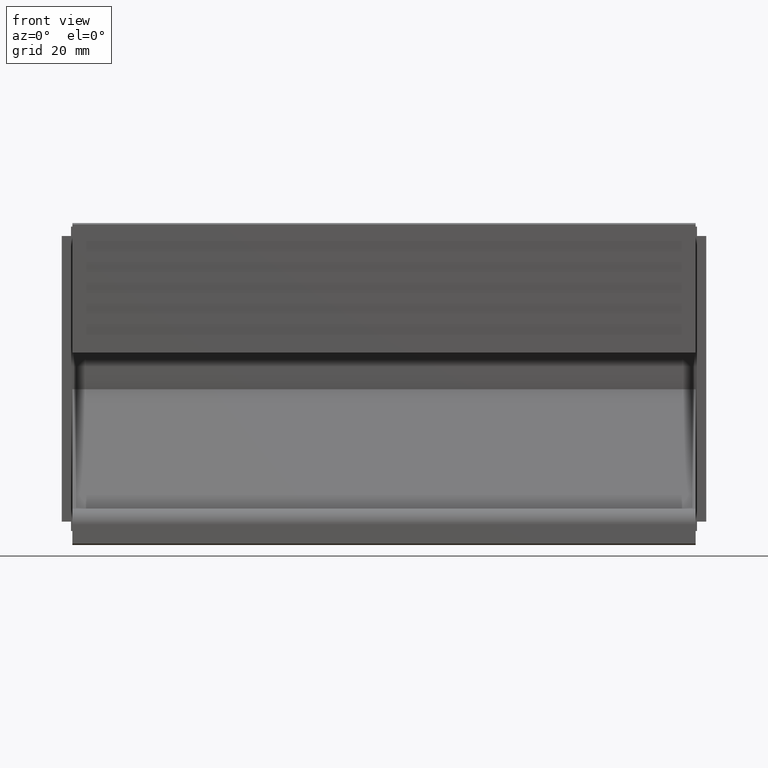
[diagram: clean part render]
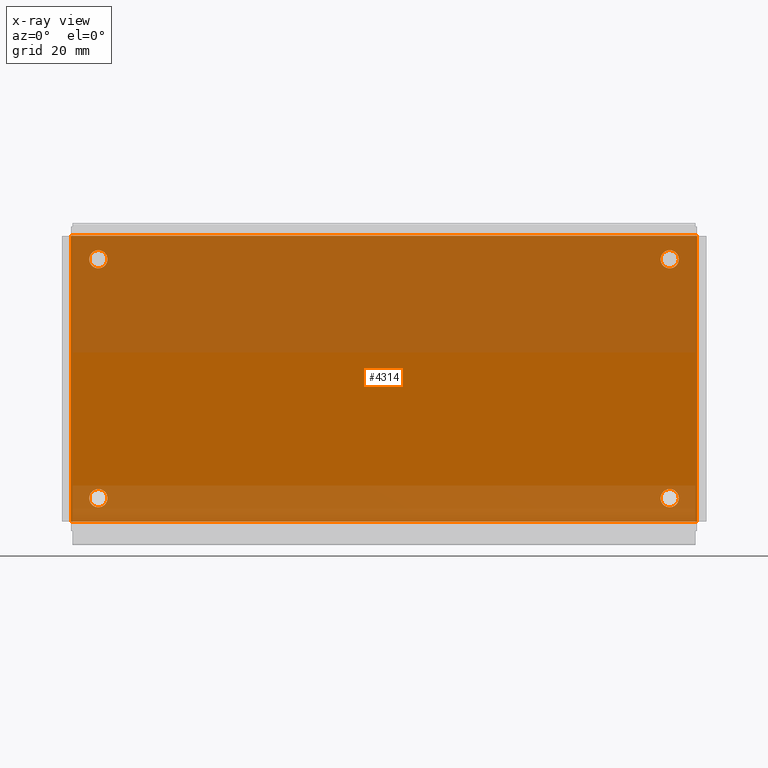
[diagram: x-ray — body ghosted, one internal face saturated and labeled with its STEP entity id]
A machine part, front view, then the same camera in x-ray: the body is ghosted and one INTERNAL B-rep face — a face not visible from any outside direction — is saturated and labeled: STEP entity #4314.
In plain terms, the highlighted face is a freeform B-spline surface patch.
Its self-contained STEP definition (entity closure, byte-faithful):
#2851=CARTESIAN_POINT('',(-53.255394666056162,-1.600000000000045,22.862696581343780));
#2852=VERTEX_POINT('',#2851);
#2858=CARTESIAN_POINT('',(-55.0,-1.600000000000045,24.750000000000000));
#2859=VERTEX_POINT('',#2858);
#2860=CARTESIAN_POINT('',(-53.255394666056155,-1.600000000000045,22.862696581343780));
#2861=CARTESIAN_POINT('',(-53.250000000000000,-1.600000000000045,22.931242311598830));
#2862=CARTESIAN_POINT('',(-53.250000000000000,-1.600000000000045,23.0));
#2863=CARTESIAN_POINT('',(-53.249999999999993,-1.600000000000045,24.750000000000000));
#2864=CARTESIAN_POINT('',(-55.0,-1.600000000000045,24.750000000000000));
#2872=(BOUNDED_CURVE()B_SPLINE_CURVE(2,(#2860,#2861,#2862,#2863,#2864),.UNSPECIFIED.,.F.,.U.)B_SPLINE_CURVE_WITH_KNOTS((3,2,3),(0.736331300410209,0.750000000000000,1.0),.UNSPECIFIED.)CURVE()GEOMETRIC_REPRESENTATION_ITEM()RATIONAL_B_SPLINE_CURVE((0.969723355707354,0.983986122320608,1.0,0.707106781186547,1.0))REPRESENTATION_ITEM(''));
#2873=EDGE_CURVE('',#2852,#2859,#2872,.T.);
#2875=CARTESIAN_POINT('',(-56.744605333943852,-1.600000000000045,23.137303418656220));
#2876=VERTEX_POINT('',#2875);
#2877=CARTESIAN_POINT('',(-55.0,-1.600000000000045,24.750000000000000));
#2878=CARTESIAN_POINT('',(-56.617683358295153,-1.600000000000046,24.750000000000004));
#2879=CARTESIAN_POINT('',(-56.744605333943845,-1.600000000000045,23.137303418656227));
#2887=(BOUNDED_CURVE()B_SPLINE_CURVE(2,(#2877,#2878,#2879),.UNSPECIFIED.,.F.,.U.)B_SPLINE_CURVE_WITH_KNOTS((3,3),(0.0,0.236331300410209),.UNSPECIFIED.)CURVE()GEOMETRIC_REPRESENTATION_ITEM()RATIONAL_B_SPLINE_CURVE((1.0,0.723120658865939,0.969723355707354))REPRESENTATION_ITEM(''));
#2888=EDGE_CURVE('',#2859,#2876,#2887,.T.);
#2934=CARTESIAN_POINT('',(-55.0,-1.600000000000045,21.250000000000000));
#2935=VERTEX_POINT('',#2934);
#2936=CARTESIAN_POINT('',(-56.744605333943838,-1.600000000000045,23.137303418656224));
#2937=CARTESIAN_POINT('',(-56.750000000000007,-1.600000000000046,23.068757688401178));
#2938=CARTESIAN_POINT('',(-56.750000000000000,-1.600000000000045,23.0));
#2939=CARTESIAN_POINT('',(-56.750000000000000,-1.600000000000045,21.249999999999996));
#2940=CARTESIAN_POINT('',(-55.0,-1.600000000000045,21.250000000000000));
#2948=(BOUNDED_CURVE()B_SPLINE_CURVE(2,(#2936,#2937,#2938,#2939,#2940),.UNSPECIFIED.,.F.,.U.)B_SPLINE_CURVE_WITH_KNOTS((3,2,3),(0.236331300410209,0.250000000000000,0.500000000000000),.UNSPECIFIED.)CURVE()GEOMETRIC_REPRESENTATION_ITEM()RATIONAL_B_SPLINE_CURVE((0.969723355707355,0.983986122320608,1.0,0.707106781186547,1.0))REPRESENTATION_ITEM(''));
#2949=EDGE_CURVE('',#2876,#2935,#2948,.T.);
#2951=CARTESIAN_POINT('',(-55.0,-1.600000000000045,21.250000000000000));
#2952=CARTESIAN_POINT('',(-53.382316641704861,-1.600000000000046,21.249999999999993));
#2953=CARTESIAN_POINT('',(-53.255394666056155,-1.600000000000045,22.862696581343776));
#2961=(BOUNDED_CURVE()B_SPLINE_CURVE(2,(#2951,#2952,#2953),.UNSPECIFIED.,.F.,.U.)B_SPLINE_CURVE_WITH_KNOTS((3,3),(0.500000000000000,0.736331300410209),.UNSPECIFIED.)CURVE()GEOMETRIC_REPRESENTATION_ITEM()RATIONAL_B_SPLINE_CURVE((1.0,0.723120658865940,0.969723355707353))REPRESENTATION_ITEM(''));
#2962=EDGE_CURVE('',#2935,#2852,#2961,.T.);
#3033=CARTESIAN_POINT('',(56.744605333943852,-1.600000000000045,22.862696581343780));
#3034=VERTEX_POINT('',#3033);
#3040=CARTESIAN_POINT('',(55.0,-1.600000000000045,24.750000000000000));
#3041=VERTEX_POINT('',#3040);
#3042=CARTESIAN_POINT('',(56.744605333943845,-1.600000000000045,22.862696581343780));
#3043=CARTESIAN_POINT('',(56.750000000000000,-1.600000000000045,22.931242311598830));
#3044=CARTESIAN_POINT('',(56.750000000000000,-1.600000000000045,23.0));
#3045=CARTESIAN_POINT('',(56.750000000000000,-1.600000000000045,24.750000000000000));
#3046=CARTESIAN_POINT('',(55.0,-1.600000000000045,24.750000000000000));
#3054=(BOUNDED_CURVE()B_SPLINE_CURVE(2,(#3042,#3043,#3044,#3045,#3046),.UNSPECIFIED.,.F.,.U.)B_SPLINE_CURVE_WITH_KNOTS((3,2,3),(0.736331300410209,0.750000000000000,1.0),.UNSPECIFIED.)CURVE()GEOMETRIC_REPRESENTATION_ITEM()RATIONAL_B_SPLINE_CURVE((0.969723355707354,0.983986122320608,1.0,0.707106781186547,1.0))REPRESENTATION_ITEM(''));
#3055=EDGE_CURVE('',#3034,#3041,#3054,.T.);
#3057=CARTESIAN_POINT('',(53.255394666056162,-1.600000000000045,23.137303418656231));
#3058=VERTEX_POINT('',#3057);
#3059=CARTESIAN_POINT('',(55.0,-1.600000000000045,24.750000000000000));
#3060=CARTESIAN_POINT('',(53.382316641704854,-1.600000000000045,24.750000000000000));
#3061=CARTESIAN_POINT('',(53.255394666056162,-1.600000000000045,23.137303418656224));
#3069=(BOUNDED_CURVE()B_SPLINE_CURVE(2,(#3059,#3060,#3061),.UNSPECIFIED.,.F.,.U.)B_SPLINE_CURVE_WITH_KNOTS((3,3),(0.0,0.236331300410209),.UNSPECIFIED.)CURVE()GEOMETRIC_REPRESENTATION_ITEM()RATIONAL_B_SPLINE_CURVE((1.0,0.723120658865939,0.969723355707354))REPRESENTATION_ITEM(''));
#3070=EDGE_CURVE('',#3041,#3058,#3069,.T.);
#3116=CARTESIAN_POINT('',(55.0,-1.600000000000045,21.250000000000000));
#3117=VERTEX_POINT('',#3116);
#3118=CARTESIAN_POINT('',(53.255394666056162,-1.600000000000045,23.137303418656224));
#3119=CARTESIAN_POINT('',(53.250000000000014,-1.600000000000045,23.068757688401174));
#3120=CARTESIAN_POINT('',(53.250000000000000,-1.600000000000045,23.0));
#3121=CARTESIAN_POINT('',(53.249999999999993,-1.600000000000045,21.249999999999996));
#3122=CARTESIAN_POINT('',(55.0,-1.600000000000045,21.250000000000000));
#3130=(BOUNDED_CURVE()B_SPLINE_CURVE(2,(#3118,#3119,#3120,#3121,#3122),.UNSPECIFIED.,.F.,.U.)B_SPLINE_CURVE_WITH_KNOTS((3,2,3),(0.236331300410209,0.250000000000000,0.500000000000000),.UNSPECIFIED.)CURVE()GEOMETRIC_REPRESENTATION_ITEM()RATIONAL_B_SPLINE_CURVE((0.969723355707354,0.983986122320608,1.0,0.707106781186547,1.0))REPRESENTATION_ITEM(''));
#3131=EDGE_CURVE('',#3058,#3117,#3130,.T.);
#3133=CARTESIAN_POINT('',(55.0,-1.600000000000045,21.250000000000000));
#3134=CARTESIAN_POINT('',(56.617683358295153,-1.600000000000046,21.249999999999993));
#3135=CARTESIAN_POINT('',(56.744605333943845,-1.600000000000045,22.862696581343776));
#3143=(BOUNDED_CURVE()B_SPLINE_CURVE(2,(#3133,#3134,#3135),.UNSPECIFIED.,.F.,.U.)B_SPLINE_CURVE_WITH_KNOTS((3,3),(0.500000000000000,0.736331300410209),.UNSPECIFIED.)CURVE()GEOMETRIC_REPRESENTATION_ITEM()RATIONAL_B_SPLINE_CURVE((1.0,0.723120658865940,0.969723355707353))REPRESENTATION_ITEM(''));
#3144=EDGE_CURVE('',#3117,#3034,#3143,.T.);
#3215=CARTESIAN_POINT('',(56.744605333943838,-1.600000000000045,-23.137303418656220));
#3216=VERTEX_POINT('',#3215);
#3222=CARTESIAN_POINT('',(55.0,-1.600000000000045,-21.250000000000000));
#3223=VERTEX_POINT('',#3222);
#3224=CARTESIAN_POINT('',(56.744605333943838,-1.600000000000045,-23.137303418656227));
#3225=CARTESIAN_POINT('',(56.750000000000007,-1.600000000000045,-23.068757688401174));
#3226=CARTESIAN_POINT('',(56.750000000000000,-1.600000000000045,-23.0));
#3227=CARTESIAN_POINT('',(56.750000000000000,-1.600000000000045,-21.249999999999996));
#3228=CARTESIAN_POINT('',(55.0,-1.600000000000045,-21.250000000000000));
#3236=(BOUNDED_CURVE()B_SPLINE_CURVE(2,(#3224,#3225,#3226,#3227,#3228),.UNSPECIFIED.,.F.,.U.)B_SPLINE_CURVE_WITH_KNOTS((3,2,3),(0.736331300410209,0.750000000000000,1.0),.UNSPECIFIED.)CURVE()GEOMETRIC_REPRESENTATION_ITEM()RATIONAL_B_SPLINE_CURVE((0.969723355707354,0.983986122320608,1.0,0.707106781186547,1.0))REPRESENTATION_ITEM(''));
#3237=EDGE_CURVE('',#3216,#3223,#3236,.T.);
#3239=CARTESIAN_POINT('',(53.255394666056162,-1.600000000000045,-22.862696581343780));
#3240=VERTEX_POINT('',#3239);
#3241=CARTESIAN_POINT('',(55.0,-1.600000000000045,-21.250000000000000));
#3242=CARTESIAN_POINT('',(53.382316641704847,-1.600000000000046,-21.250000000000000));
#3243=CARTESIAN_POINT('',(53.255394666056155,-1.600000000000045,-22.862696581343780));
#3251=(BOUNDED_CURVE()B_SPLINE_CURVE(2,(#3241,#3242,#3243),.UNSPECIFIED.,.F.,.U.)B_SPLINE_CURVE_WITH_KNOTS((3,3),(0.0,0.236331300410209),.UNSPECIFIED.)CURVE()GEOMETRIC_REPRESENTATION_ITEM()RATIONAL_B_SPLINE_CURVE((1.0,0.723120658865939,0.969723355707354))REPRESENTATION_ITEM(''));
#3252=EDGE_CURVE('',#3223,#3240,#3251,.T.);
#3298=CARTESIAN_POINT('',(55.0,-1.600000000000045,-24.750000000000000));
#3299=VERTEX_POINT('',#3298);
#3300=CARTESIAN_POINT('',(53.255394666056155,-1.600000000000045,-22.862696581343780));
#3301=CARTESIAN_POINT('',(53.250000000000000,-1.600000000000045,-22.931242311598830));
#3302=CARTESIAN_POINT('',(53.250000000000000,-1.600000000000045,-23.0));
#3303=CARTESIAN_POINT('',(53.249999999999993,-1.600000000000045,-24.750000000000000));
#3304=CARTESIAN_POINT('',(55.0,-1.600000000000045,-24.750000000000000));
#3312=(BOUNDED_CURVE()B_SPLINE_CURVE(2,(#3300,#3301,#3302,#3303,#3304),.UNSPECIFIED.,.F.,.U.)B_SPLINE_CURVE_WITH_KNOTS((3,2,3),(0.236331300410209,0.250000000000000,0.500000000000000),.UNSPECIFIED.)CURVE()GEOMETRIC_REPRESENTATION_ITEM()RATIONAL_B_SPLINE_CURVE((0.969723355707354,0.983986122320608,1.0,0.707106781186547,1.0))REPRESENTATION_ITEM(''));
#3313=EDGE_CURVE('',#3240,#3299,#3312,.T.);
#3315=CARTESIAN_POINT('',(55.0,-1.600000000000045,-24.750000000000000));
#3316=CARTESIAN_POINT('',(56.617683358295153,-1.600000000000046,-24.750000000000004));
#3317=CARTESIAN_POINT('',(56.744605333943845,-1.600000000000045,-23.137303418656224));
#3325=(BOUNDED_CURVE()B_SPLINE_CURVE(2,(#3315,#3316,#3317),.UNSPECIFIED.,.F.,.U.)B_SPLINE_CURVE_WITH_KNOTS((3,3),(0.500000000000000,0.736331300410209),.UNSPECIFIED.)CURVE()GEOMETRIC_REPRESENTATION_ITEM()RATIONAL_B_SPLINE_CURVE((1.0,0.723120658865940,0.969723355707353))REPRESENTATION_ITEM(''));
#3326=EDGE_CURVE('',#3299,#3216,#3325,.T.);
#3397=CARTESIAN_POINT('',(-53.255394666056162,-1.600000000000045,-23.137303418656220));
#3398=VERTEX_POINT('',#3397);
#3404=CARTESIAN_POINT('',(-55.0,-1.600000000000045,-21.250000000000000));
#3405=VERTEX_POINT('',#3404);
#3406=CARTESIAN_POINT('',(-53.255394666056148,-1.600000000000045,-23.137303418656220));
#3407=CARTESIAN_POINT('',(-53.249999999999993,-1.600000000000045,-23.068757688401174));
#3408=CARTESIAN_POINT('',(-53.250000000000000,-1.600000000000045,-23.0));
#3409=CARTESIAN_POINT('',(-53.249999999999993,-1.600000000000045,-21.249999999999996));
#3410=CARTESIAN_POINT('',(-55.0,-1.600000000000045,-21.250000000000000));
#3418=(BOUNDED_CURVE()B_SPLINE_CURVE(2,(#3406,#3407,#3408,#3409,#3410),.UNSPECIFIED.,.F.,.U.)B_SPLINE_CURVE_WITH_KNOTS((3,2,3),(0.736331300410209,0.750000000000000,1.0),.UNSPECIFIED.)CURVE()GEOMETRIC_REPRESENTATION_ITEM()RATIONAL_B_SPLINE_CURVE((0.969723355707355,0.983986122320609,1.0,0.707106781186547,1.0))REPRESENTATION_ITEM(''));
#3419=EDGE_CURVE('',#3398,#3405,#3418,.T.);
#3421=CARTESIAN_POINT('',(-56.744605333943838,-1.600000000000045,-22.862696581343769));
#3422=VERTEX_POINT('',#3421);
#3423=CARTESIAN_POINT('',(-55.0,-1.600000000000045,-21.250000000000000));
#3424=CARTESIAN_POINT('',(-56.617683358295153,-1.600000000000045,-21.249999999999996));
#3425=CARTESIAN_POINT('',(-56.744605333943838,-1.600000000000045,-22.862696581343776));
#3433=(BOUNDED_CURVE()B_SPLINE_CURVE(2,(#3423,#3424,#3425),.UNSPECIFIED.,.F.,.U.)B_SPLINE_CURVE_WITH_KNOTS((3,3),(0.0,0.236331300410209),.UNSPECIFIED.)CURVE()GEOMETRIC_REPRESENTATION_ITEM()RATIONAL_B_SPLINE_CURVE((1.0,0.723120658865939,0.969723355707354))REPRESENTATION_ITEM(''));
#3434=EDGE_CURVE('',#3405,#3422,#3433,.T.);
#3480=CARTESIAN_POINT('',(-55.0,-1.600000000000045,-24.750000000000000));
#3481=VERTEX_POINT('',#3480);
#3482=CARTESIAN_POINT('',(-56.744605333943845,-1.600000000000045,-22.862696581343773));
#3483=CARTESIAN_POINT('',(-56.750000000000007,-1.600000000000045,-22.931242311598830));
#3484=CARTESIAN_POINT('',(-56.750000000000000,-1.600000000000045,-23.0));
#3485=CARTESIAN_POINT('',(-56.750000000000000,-1.600000000000045,-24.750000000000000));
#3486=CARTESIAN_POINT('',(-55.0,-1.600000000000045,-24.750000000000000));
#3494=(BOUNDED_CURVE()B_SPLINE_CURVE(2,(#3482,#3483,#3484,#3485,#3486),.UNSPECIFIED.,.F.,.U.)B_SPLINE_CURVE_WITH_KNOTS((3,2,3),(0.236331300410209,0.250000000000000,0.500000000000000),.UNSPECIFIED.)CURVE()GEOMETRIC_REPRESENTATION_ITEM()RATIONAL_B_SPLINE_CURVE((0.969723355707354,0.983986122320608,1.0,0.707106781186547,1.0))REPRESENTATION_ITEM(''));
#3495=EDGE_CURVE('',#3422,#3481,#3494,.T.);
#3497=CARTESIAN_POINT('',(-55.0,-1.600000000000045,-24.750000000000000));
#3498=CARTESIAN_POINT('',(-53.382316641704861,-1.600000000000046,-24.750000000000004));
#3499=CARTESIAN_POINT('',(-53.255394666056155,-1.600000000000045,-23.137303418656224));
#3507=(BOUNDED_CURVE()B_SPLINE_CURVE(2,(#3497,#3498,#3499),.UNSPECIFIED.,.F.,.U.)B_SPLINE_CURVE_WITH_KNOTS((3,3),(0.500000000000000,0.736331300410209),.UNSPECIFIED.)CURVE()GEOMETRIC_REPRESENTATION_ITEM()RATIONAL_B_SPLINE_CURVE((1.0,0.723120658865940,0.969723355707353))REPRESENTATION_ITEM(''));
#3508=EDGE_CURVE('',#3481,#3398,#3507,.T.);
#3710=CARTESIAN_POINT('',(-60.250000000000000,-1.600000000000045,27.500000000000000));
#3711=VERTEX_POINT('',#3710);
#3733=CARTESIAN_POINT('',(-60.250000000000000,-1.600000000000045,-27.500000000000000));
#3734=VERTEX_POINT('',#3733);
#3735=CARTESIAN_POINT('',(-60.250000000000000,-1.600000000000045,27.500000000000000));
#3736=CARTESIAN_POINT('',(-60.250000000000000,-1.600000000000045,-27.500000000000000));
#3737=QUASI_UNIFORM_CURVE('',1,(#3735,#3736),.UNSPECIFIED.,.F.,.U.);
#3738=EDGE_CURVE('',#3711,#3734,#3737,.T.);
#3808=CARTESIAN_POINT('',(60.250000000000000,-1.600000000000045,-27.500000000000000));
#3809=VERTEX_POINT('',#3808);
#3841=CARTESIAN_POINT('',(60.250000000000000,-1.600000000000045,27.500000000000000));
#3842=VERTEX_POINT('',#3841);
#3875=CARTESIAN_POINT('',(60.250000000000000,-1.600000000000045,27.500000000000000));
#3876=CARTESIAN_POINT('',(60.250000000000000,-1.600000000000045,-27.500000000000000));
#3877=QUASI_UNIFORM_CURVE('',1,(#3875,#3876),.UNSPECIFIED.,.F.,.U.);
#3878=EDGE_CURVE('',#3842,#3809,#3877,.T.);
#3890=CARTESIAN_POINT('',(-60.250000000000000,-1.600000000000000,-27.510000000000002));
#3891=VERTEX_POINT('',#3890);
#3892=CARTESIAN_POINT('',(-60.250000000000000,-1.600000000000045,-27.500000000000000));
#3893=CARTESIAN_POINT('',(-60.250000000000000,-1.600000000000000,-27.510000000000002));
#3894=QUASI_UNIFORM_CURVE('',1,(#3892,#3893),.UNSPECIFIED.,.F.,.U.);
#3895=EDGE_CURVE('',#3734,#3891,#3894,.T.);
#3941=CARTESIAN_POINT('',(60.250000000000000,-1.600000000000000,-27.510000000000002));
#3942=VERTEX_POINT('',#3941);
#3943=CARTESIAN_POINT('',(60.250000000000000,-1.600000000000045,-27.500000000000000));
#3944=CARTESIAN_POINT('',(60.250000000000000,-1.600000000000000,-27.510000000000002));
#3945=QUASI_UNIFORM_CURVE('',1,(#3943,#3944),.UNSPECIFIED.,.F.,.U.);
#3946=EDGE_CURVE('',#3809,#3942,#3945,.T.);
#4111=CARTESIAN_POINT('',(60.250000000000000,-1.600000000000000,-27.510000000000002));
#4112=CARTESIAN_POINT('',(-60.250000000000000,-1.600000000000000,-27.510000000000002));
#4113=QUASI_UNIFORM_CURVE('',1,(#4111,#4112),.UNSPECIFIED.,.F.,.U.);
#4114=EDGE_CURVE('',#3942,#3891,#4113,.T.);
#4126=CARTESIAN_POINT('',(-60.250000000000000,-1.600000000000000,27.510000000000002));
#4127=VERTEX_POINT('',#4126);
#4133=CARTESIAN_POINT('',(60.250000000000000,-1.600000000000000,27.510000000000002));
#4134=VERTEX_POINT('',#4133);
#4135=CARTESIAN_POINT('',(60.250000000000000,-1.600000000000000,27.510000000000002));
#4136=CARTESIAN_POINT('',(-60.250000000000000,-1.600000000000000,27.510000000000002));
#4137=QUASI_UNIFORM_CURVE('',1,(#4135,#4136),.UNSPECIFIED.,.F.,.U.);
#4138=EDGE_CURVE('',#4134,#4127,#4137,.T.);
#4208=CARTESIAN_POINT('',(60.250000000000000,-1.600000000000000,27.510000000000002));
#4209=CARTESIAN_POINT('',(60.250000000000000,-1.600000000000045,27.500000000000000));
#4210=QUASI_UNIFORM_CURVE('',1,(#4208,#4209),.UNSPECIFIED.,.F.,.U.);
#4211=EDGE_CURVE('',#4134,#3842,#4210,.T.);
#4227=CARTESIAN_POINT('',(-60.250000000000000,-1.600000000000000,27.510000000000002));
#4228=CARTESIAN_POINT('',(-60.250000000000000,-1.600000000000045,27.500000000000000));
#4229=QUASI_UNIFORM_CURVE('',1,(#4227,#4228),.UNSPECIFIED.,.F.,.U.);
#4230=EDGE_CURVE('',#4127,#3711,#4229,.T.);
#4275=CARTESIAN_POINT('',(-66.268974766447613,-1.600000000000000,-30.258249409848968));
#4276=CARTESIAN_POINT('',(-66.268974766447613,-1.600000000000000,30.258250393683230));
#4277=CARTESIAN_POINT('',(66.268977998509484,-1.600000000000000,-30.258249409848968));
#4278=CARTESIAN_POINT('',(66.268977998509484,-1.600000000000000,30.258250393683230));
#4279=B_SPLINE_SURFACE_WITH_KNOTS('',1,1,((#4275,#4277),(#4276,#4278)),.UNSPECIFIED.,.F.,.F.,.U.,(2,2),(2,2),(0.0,60.516499803532213),(0.0,132.537952764957110),.UNSPECIFIED.);
#4280=ORIENTED_EDGE('',*,*,#4230,.T.);
#4281=ORIENTED_EDGE('',*,*,#3738,.T.);
#4282=ORIENTED_EDGE('',*,*,#3895,.T.);
#4283=ORIENTED_EDGE('',*,*,#4114,.F.);
#4284=ORIENTED_EDGE('',*,*,#3946,.F.);
#4285=ORIENTED_EDGE('',*,*,#3878,.F.);
#4286=ORIENTED_EDGE('',*,*,#4211,.F.);
#4287=ORIENTED_EDGE('',*,*,#4138,.T.);
#4288=EDGE_LOOP('',(#4280,#4281,#4282,#4283,#4284,#4285,#4286,#4287));
#4289=FACE_OUTER_BOUND('',#4288,.T.);
#4290=ORIENTED_EDGE('',*,*,#3508,.F.);
#4291=ORIENTED_EDGE('',*,*,#3495,.F.);
#4292=ORIENTED_EDGE('',*,*,#3434,.F.);
#4293=ORIENTED_EDGE('',*,*,#3419,.F.);
#4294=EDGE_LOOP('',(#4290,#4291,#4292,#4293));
#4295=FACE_BOUND('',#4294,.T.);
#4296=ORIENTED_EDGE('',*,*,#3326,.F.);
#4297=ORIENTED_EDGE('',*,*,#3313,.F.);
#4298=ORIENTED_EDGE('',*,*,#3252,.F.);
#4299=ORIENTED_EDGE('',*,*,#3237,.F.);
#4300=EDGE_LOOP('',(#4296,#4297,#4298,#4299));
#4301=FACE_BOUND('',#4300,.T.);
#4302=ORIENTED_EDGE('',*,*,#3144,.F.);
#4303=ORIENTED_EDGE('',*,*,#3131,.F.);
#4304=ORIENTED_EDGE('',*,*,#3070,.F.);
#4305=ORIENTED_EDGE('',*,*,#3055,.F.);
#4306=EDGE_LOOP('',(#4302,#4303,#4304,#4305));
#4307=FACE_BOUND('',#4306,.T.);
#4308=ORIENTED_EDGE('',*,*,#2962,.F.);
#4309=ORIENTED_EDGE('',*,*,#2949,.F.);
#4310=ORIENTED_EDGE('',*,*,#2888,.F.);
#4311=ORIENTED_EDGE('',*,*,#2873,.F.);
#4312=EDGE_LOOP('',(#4308,#4309,#4310,#4311));
#4313=FACE_BOUND('',#4312,.T.);
#4314=ADVANCED_FACE('',(#4289,#4295,#4301,#4307,#4313),#4279,.F.);